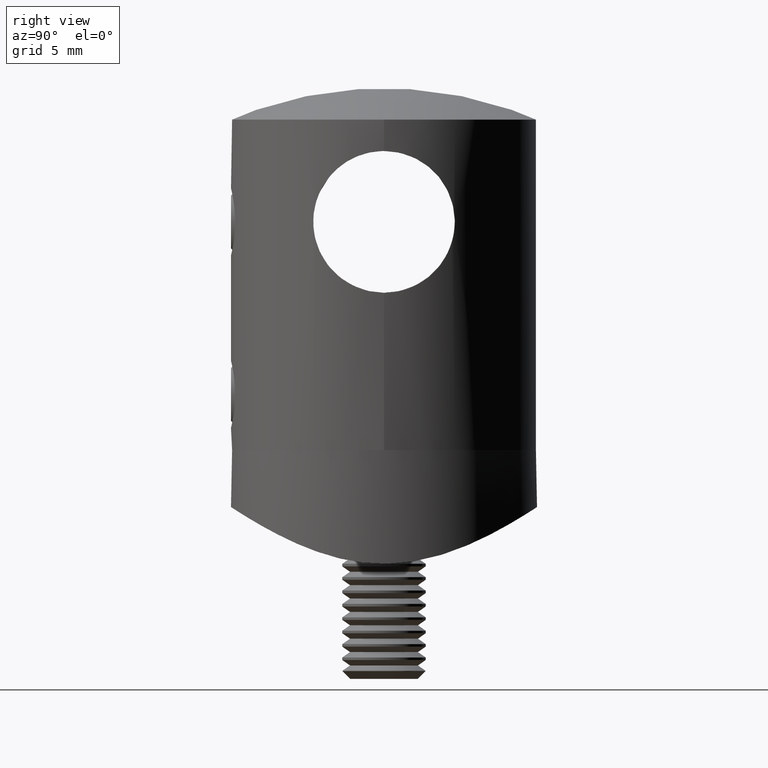
[diagram: clean part render]
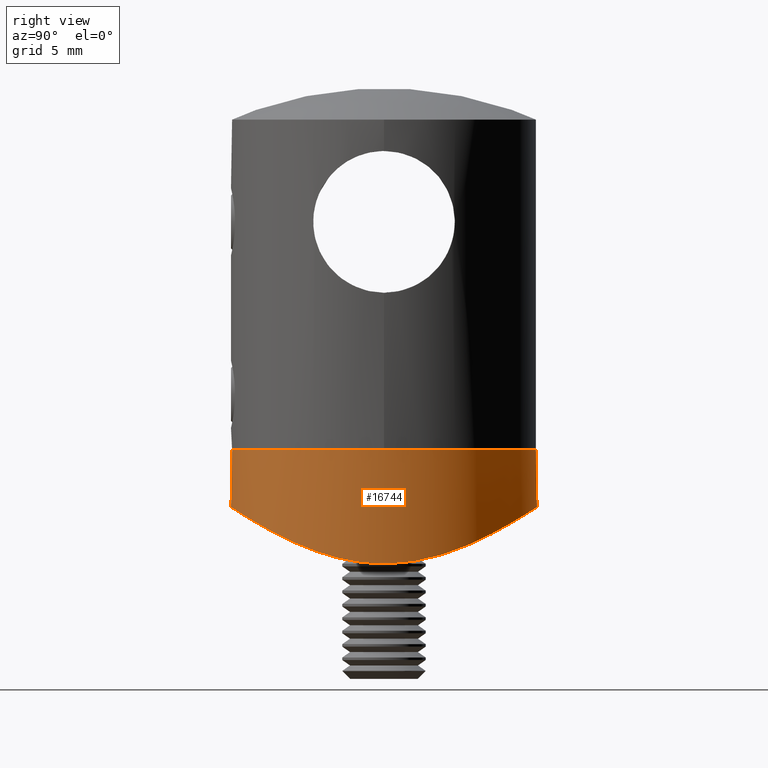
[diagram: same view with one face highlighted and labeled with its STEP entity id]
A machine part, right view. The second image highlights one B-rep face of the part: STEP entity #16744.
In plain terms, the highlighted cylindrical surface (bore or boss wall) has radius 11 mm, axis along (-0, -0, -1).
Its self-contained STEP definition (entity closure, byte-faithful):
#60 = CARTESIAN_POINT ( 'NONE',  ( -11.00201958474417000, 0.7160165617464400200, -8.187630609358146600 ) ) ;
#141 = CARTESIAN_POINT ( 'NONE',  ( 4.994393721956345000, -9.807314022847331000, -4.853819657771773600 ) ) ;
#914 = CARTESIAN_POINT ( 'NONE',  ( -5.421010862427522200E-016, 11.00000000000000000, -4.099999999999999600 ) ) ;
#1123 = CARTESIAN_POINT ( 'NONE',  ( 10.90120721894147200, 1.516899785101762700, -8.101312592176501700 ) ) ;
#1194 = CARTESIAN_POINT ( 'NONE',  ( 11.00201491404832400, -0.7148670346551255800, -8.187626584236538100 ) ) ;
#1264 = CARTESIAN_POINT ( 'NONE',  ( 9.854148997464204000, -4.901191698155273000, -7.280307266766505400 ) ) ;
#1357 = ORIENTED_EDGE ( 'NONE', *, *, #7437, .T. ) ;
#1640 = CARTESIAN_POINT ( 'NONE',  ( -0.7230737693545389300, -11.00189855515613700, -4.098760589519369700 ) ) ;
#1721 = CARTESIAN_POINT ( 'NONE',  ( -10.92889180310983300, 1.450768181064455300, -8.123545870956636600 ) ) ;
#1793 = CARTESIAN_POINT ( 'NONE',  ( 7.324541236306505000, -8.236759769819171200, -5.764989743605612600 ) ) ;
#1856 = CARTESIAN_POINT ( 'NONE',  ( -8.746824076971785500, 6.706926852566843100, -6.540603192880103800 ) ) ;
#1981 = AXIS2_PLACEMENT_3D ( 'NONE', #8792, #15748, #3800 ) ;
#2765 = CARTESIAN_POINT ( 'NONE',  ( 8.269092376313965400, 7.262551162746977000, -6.266302194668813100 ) ) ;
#2899 = CARTESIAN_POINT ( 'NONE',  ( 1.891625101859110800, -10.84241175405865600, -4.202550746245740300 ) ) ;
#2969 = CARTESIAN_POINT ( 'NONE',  ( -4.940812458176210100, -9.854400788619697600, -4.825997802038250100 ) ) ;
#3357 = CARTESIAN_POINT ( 'NONE',  ( -9.513323411660570300, 5.533801788003234600, -7.040950786251593200 ) ) ;
#3425 = CARTESIAN_POINT ( 'NONE',  ( 0.4040280168444430100, -10.99899601032173800, -4.100655422304378700 ) ) ;
#3498 = CARTESIAN_POINT ( 'NONE',  ( 1.521233653155181100, -10.90071426419850400, -4.164673317254778500 ) ) ;
#3765 = ORIENTED_EDGE ( 'NONE', *, *, #5634, .F. ) ;
#3800 = DIRECTION ( 'NONE',  ( -1.000000000000000000, 0.0000000000000000000, 0.0000000000000000000 ) ) ;
#4330 = CARTESIAN_POINT ( 'NONE',  ( 10.92911577364980900, -1.448483440927385000, -8.123745414125503200 ) ) ;
#4471 = CARTESIAN_POINT ( 'NONE',  ( 9.843250045500743900, 4.961322990543318500, -7.269578455515920200 ) ) ;
#4609 = CARTESIAN_POINT ( 'NONE',  ( -5.567662256621773900, -9.513652561121729100, -5.033765088256144400 ) ) ;
#4684 = CARTESIAN_POINT ( 'NONE',  ( 8.753413770078076100, -6.698215559651554700, -6.544643719260795600 ) ) ;
#5054 = AXIS2_PLACEMENT_3D ( 'NONE', #18546, #11877, #9862 ) ;
#5056 = CARTESIAN_POINT ( 'NONE',  ( -7.313931224412483400, 8.246267564684838900, -5.759829195327544200 ) ) ;
#5132 = CARTESIAN_POINT ( 'NONE',  ( -4.977280282428550300, 9.816035886505098100, -4.848502319184940600 ) ) ;
#5209 = CARTESIAN_POINT ( 'NONE',  ( -1.459233787555855600, -10.92752189499604600, -4.147593627837132100 ) ) ;
#5346 = CARTESIAN_POINT ( 'NONE',  ( -5.421010862427522200E-016, 11.00000000000000000, -4.099999999999999600 ) ) ;
#5370 = B_SPLINE_CURVE_WITH_KNOTS ( 'NONE', 3,
 ( #914, #9391, #16205, #14693, #21510, #19838, #11245, #12972, #18199, #9595, #2765, #5972, #14552, #21643, #4471, #7972, #19912, #17927, #21576, #11323, #1123, #11386, #18007, #1194, #4330, #11453, #22180, #13645, #8638, #18796, #1264, #20588, #6701, #4684, #21722, #1793, #6848, #13722, #6780, #141, #16952, #14841, #13193, #2899, #3498, #20446, #3425, #1640, #5209, #20368, #14908, #2969, #4609, #20513, #8041, #16560, #9751, #10191, #18650, #15436, #17172, #6322, #6918, #10118, #8421, #10340, #10271, #22110, #18277, #60, #1721, #19981, #11838, #18873, #12056, #13570, #18718, #3357, #15368, #1856, #15293, #5056, #17025, #8483, #11911, #5132, #17095, #8559, #11978, #17473, #12365, #17394, #10710, #5346 ),
 .UNSPECIFIED., .T., .F.,
 ( 4, 2, 2, 2, 2, 2, 2, 2, 2, 2, 2, 2, 2, 2, 2, 2, 2, 2, 2, 2, 2, 2, 2, 2, 2, 2, 2, 2, 2, 2, 2, 2, 2, 2, 2, 2, 2, 2, 2, 2, 2, 2, 2, 2, 2, 2, 4 ),
 ( 0.0000000000000000000, 0.002215515586463679600, 0.004431031172927359300, 0.006646546759391038500, 0.008862062345854718500, 0.009969820139086562500, 0.01107757793231840600, 0.01329309351878208900, 0.01440085131201393300, 0.01550860910524577300, 0.01661636689847761600, 0.01772412469170945800, 0.01993964027817313900, 0.02104739807140498100, 0.02215515586463682300, 0.02326291365786865900, 0.02437067145110050100, 0.02658618703756418200, 0.02880170262402786600, 0.02990946041725970500, 0.03101721821049154400, 0.03323273379695522400, 0.03434049159018706000, 0.03544824938341890200, 0.03766376496988257900, 0.03987928055634625700, 0.04209479614280994100, 0.04431031172927361900, 0.04541806952250546100, 0.04652582731573729600, 0.04874134290220098800, 0.04984910069543283000, 0.05095685848866466500, 0.05206461628189650700, 0.05317237407512834200, 0.05538788966159202700, 0.05649564745482386200, 0.05760340524805570400, 0.05871116304128754700, 0.05981892083451938900, 0.06203443642098307300, 0.06424995200744676400, 0.06535770980067860700, 0.06646546759391046300, 0.06868098318037414700, 0.06978874097360598900, 0.07089649876683783200 ),
 .UNSPECIFIED. ) ;
#5634 = EDGE_CURVE ( 'NONE', #10718, #10718, #5370, .T. ) ;
#5696 = EDGE_LOOP ( 'NONE', ( #1357 ) ) ;
#5972 = CARTESIAN_POINT ( 'NONE',  ( 8.714127519215512800, 6.722091913860005300, -6.525962716869017300 ) ) ;
#6322 = CARTESIAN_POINT ( 'NONE',  ( -10.25818145571561900, -3.986997462161848500, -7.581281686274249600 ) ) ;
#6701 = CARTESIAN_POINT ( 'NONE',  ( 9.336363142654940700, -5.827041217196950600, -6.921160638891731100 ) ) ;
#6780 = CARTESIAN_POINT ( 'NONE',  ( 5.619624300000450200, -9.462938218095864300, -5.061299203953278300 ) ) ;
#6848 = CARTESIAN_POINT ( 'NONE',  ( 6.789191799571511000, -8.683281219485916600, -5.515698990244468200 ) ) ;
#6918 = CARTESIAN_POINT ( 'NONE',  ( -10.38371390694916000, -3.648515827661915200, -7.678957479281230300 ) ) ;
#7437 = EDGE_CURVE ( 'NONE', #10179, #10179, #12726, .T. ) ;
#7972 = CARTESIAN_POINT ( 'NONE',  ( 10.26041540776501600, 3.981199565304947500, -7.583002321637183100 ) ) ;
#8041 = CARTESIAN_POINT ( 'NONE',  ( -7.287832315626904000, -8.268784713272825800, -5.747426715403324900 ) ) ;
#8421 = CARTESIAN_POINT ( 'NONE',  ( -10.69476580629262200, -2.599209880257915600, -7.928714355929983500 ) ) ;
#8483 = CARTESIAN_POINT ( 'NONE',  ( -5.905856559890865200, 9.286787051618294000, -5.165802236493235900 ) ) ;
#8559 = CARTESIAN_POINT ( 'NONE',  ( -3.647820308111114700, 10.40291650209018400, -4.485087939503843700 ) ) ;
#8638 = CARTESIAN_POINT ( 'NONE',  ( 10.28409182688678100, -3.919822377358858300, -7.601224180167291100 ) ) ;
#8792 = CARTESIAN_POINT ( 'NONE',  ( 0.0000000000000000000, 0.0000000000000000000, -2.100000000000000100 ) ) ;
#9391 = CARTESIAN_POINT ( 'NONE',  ( 0.7504225575288329100, 10.99999999999999600, -4.099999999999999600 ) ) ;
#9393 = CARTESIAN_POINT ( 'NONE',  ( 0.0000000000000000000, 11.00000000000000000, -4.099999999999999600 ) ) ;
#9595 = CARTESIAN_POINT ( 'NONE',  ( 8.035128173064736100, 7.520482768428734300, -6.136631074858657400 ) ) ;
#9751 = CARTESIAN_POINT ( 'NONE',  ( -8.261126776390940000, -7.271634869465105800, -6.261808302300234900 ) ) ;
#9862 = DIRECTION ( 'NONE',  ( -1.000000000000000000, 0.0000000000000000000, 0.0000000000000000000 ) ) ;
#10118 = CARTESIAN_POINT ( 'NONE',  ( -10.60270450494716400, -2.952260054067377100, -7.853254554322739400 ) ) ;
#10179 = VERTEX_POINT ( 'NONE', #14620 ) ;
#10191 = CARTESIAN_POINT ( 'NONE',  ( -8.707368420141696300, -6.730871005029237100, -6.521870316638445100 ) ) ;
#10271 = CARTESIAN_POINT ( 'NONE',  ( -10.90090342499425300, -1.519220722226561200, -8.101054233036480300 ) ) ;
#10340 = CARTESIAN_POINT ( 'NONE',  ( -10.84386393418551700, -1.882690263943270500, -8.052616139201704800 ) ) ;
#10710 = CARTESIAN_POINT ( 'NONE',  ( -0.3752112787644171800, 11.00000000000000200, -4.099999999999999600 ) ) ;
#10718 = VERTEX_POINT ( 'NONE', #9393 ) ;
#10964 = EDGE_LOOP ( 'NONE', ( #3765 ) ) ;
#11245 = CARTESIAN_POINT ( 'NONE',  ( 5.583335700524620500, 9.504358815653152000, -5.039322906466653200 ) ) ;
#11323 = CARTESIAN_POINT ( 'NONE',  ( 10.84434200566227700, 1.879824784190038400, -8.053020297059907400 ) ) ;
#11386 = CARTESIAN_POINT ( 'NONE',  ( 10.97857567691352700, 0.7798588940482332800, -8.167356961858532200 ) ) ;
#11453 = CARTESIAN_POINT ( 'NONE',  ( 10.71079635700079700, -2.532737721711200600, -7.941913631408527700 ) ) ;
#11838 = CARTESIAN_POINT ( 'NONE',  ( -10.61856669320482600, 2.894416533918324800, -7.866145591033403900 ) ) ;
#11877 = DIRECTION ( 'NONE',  ( -0.0000000000000000000, -0.0000000000000000000, -1.000000000000000000 ) ) ;
#11911 = CARTESIAN_POINT ( 'NONE',  ( -5.604322291244399100, 9.472035219047118200, -5.055877871646831800 ) ) ;
#11978 = CARTESIAN_POINT ( 'NONE',  ( -2.953023256731231300, 10.62197701239059300, -4.344706131990983000 ) ) ;
#12056 = CARTESIAN_POINT ( 'NONE',  ( -10.28190739673833900, 3.925598203230044700, -7.599535194388929300 ) ) ;
#12365 = CARTESIAN_POINT ( 'NONE',  ( -1.495634549109364300, 10.90427622395808900, -4.162358782812155800 ) ) ;
#12726 = CIRCLE ( 'NONE', #5054, 11.00000000000000000 ) ;
#12972 = CARTESIAN_POINT ( 'NONE',  ( 6.761475590729557600, 8.705683309046159800, -5.503132001748452000 ) ) ;
#13193 = CARTESIAN_POINT ( 'NONE',  ( 2.975070670190538700, -10.61571981494909300, -4.348715030468193600 ) ) ;
#13570 = CARTESIAN_POINT ( 'NONE',  ( -10.00515826687519700, 4.585275239621323000, -7.390894635126502800 ) ) ;
#13645 = CARTESIAN_POINT ( 'NONE',  ( 10.40660793608673800, -3.582419515371406200, -7.696939661726952800 ) ) ;
#13722 = CARTESIAN_POINT ( 'NONE',  ( 5.920309234495463500, -9.277556956168968600, -5.171232405357976300 ) ) ;
#14552 = CARTESIAN_POINT ( 'NONE',  ( 8.923976763951415600, 6.440819694390915700, -6.655284595638328900 ) ) ;
#14620 = CARTESIAN_POINT ( 'NONE',  ( -11.00000000000000000, 0.0000000000000000000, 0.0000000000000000000 ) ) ;
#14693 = CARTESIAN_POINT ( 'NONE',  ( 2.922207133913592000, 10.63010287850188700, -4.339491982653713700 ) ) ;
#14841 = CARTESIAN_POINT ( 'NONE',  ( 3.668218985695954600, -10.39566322427721600, -4.489679260312636100 ) ) ;
#14908 = CARTESIAN_POINT ( 'NONE',  ( -3.610935265409396200, -10.41546874406719200, -4.477106473489020500 ) ) ;
#15293 = CARTESIAN_POINT ( 'NONE',  ( -8.304453093722246500, 7.247798115150285300, -6.277885706390971900 ) ) ;
#15368 = CARTESIAN_POINT ( 'NONE',  ( -9.331423384684521600, 5.834979642257271100, -6.917864575895957400 ) ) ;
#15436 = CARTESIAN_POINT ( 'NONE',  ( -9.504457166913262300, -5.581481274748702100, -7.028651301162893700 ) ) ;
#15748 = DIRECTION ( 'NONE',  ( -0.0000000000000000000, -0.0000000000000000000, -1.000000000000000000 ) ) ;
#16084 = FACE_OUTER_BOUND ( 'NONE', #10964, .T. ) ;
#16205 = CARTESIAN_POINT ( 'NONE',  ( 1.484457244692798400, 10.92404542418735500, -4.149861375080862800 ) ) ;
#16560 = CARTESIAN_POINT ( 'NONE',  ( -8.026524102714901700, -7.529690295910200800, -6.131954602171922500 ) ) ;
#16744 = ADVANCED_FACE ( 'NONE', ( #16084, #17420 ), #21693, .T. ) ;
#16952 = CARTESIAN_POINT ( 'NONE',  ( 4.667745864453625200, -9.967123940474456500, -4.755756550861145000 ) ) ;
#17025 = CARTESIAN_POINT ( 'NONE',  ( -6.777151808125120500, 8.692780634645684400, -5.510347272570602900 ) ) ;
#17095 = CARTESIAN_POINT ( 'NONE',  ( -4.649684354675678800, 9.975582769408347900, -4.750546585087526800 ) ) ;
#17172 = CARTESIAN_POINT ( 'NONE',  ( -9.839819540571294700, -4.968268669836859000, -7.267086716290001500 ) ) ;
#17394 = CARTESIAN_POINT ( 'NONE',  ( -0.7507821401581715700, 10.98073261904172200, -4.112596799995159800 ) ) ;
#17420 = FACE_OUTER_BOUND ( 'NONE', #5696, .T. ) ;
#17473 = CARTESIAN_POINT ( 'NONE',  ( -1.866901934787220000, 10.84672128652364400, -4.199758662475307600 ) ) ;
#17927 = CARTESIAN_POINT ( 'NONE',  ( 10.60391943083395300, 2.947821833262430000, -7.854242667856583500 ) ) ;
#18007 = CARTESIAN_POINT ( 'NONE',  ( 10.99892969909351400, 0.4029729965433923600, -8.184967790190246000 ) ) ;
#18199 = CARTESIAN_POINT ( 'NONE',  ( 7.298473991795845000, 8.259301465761376800, -5.752582059087585800 ) ) ;
#18277 = CARTESIAN_POINT ( 'NONE',  ( -10.99892727231373100, -0.4035808757864801100, -8.184965698834776800 ) ) ;
#18546 = CARTESIAN_POINT ( 'NONE',  ( 0.0000000000000000000, 0.0000000000000000000, 0.0000000000000000000 ) ) ;
#18650 = CARTESIAN_POINT ( 'NONE',  ( -8.917872823006519000, -6.449298731427829200, -6.651465696766070600 ) ) ;
#18718 = CARTESIAN_POINT ( 'NONE',  ( -9.850663112943012200, 4.908229904870082400, -7.277786989641064100 ) ) ;
#18796 = CARTESIAN_POINT ( 'NONE',  ( 10.00816566813236000, -4.578664885433245700, -7.393120545228461200 ) ) ;
#18873 = CARTESIAN_POINT ( 'NONE',  ( -10.40478755954617400, 3.587757172743404800, -7.695506397685850400 ) ) ;
#19838 = CARTESIAN_POINT ( 'NONE',  ( 4.957832025022766800, 9.845749512261178900, -4.831292108248831600 ) ) ;
#19912 = CARTESIAN_POINT ( 'NONE',  ( 10.38560268325633000, 3.643078061449605400, -7.680439935568902100 ) ) ;
#19981 = CARTESIAN_POINT ( 'NONE',  ( -10.70988451701696900, 2.536675919777241300, -7.941160734935115400 ) ) ;
#20368 = CARTESIAN_POINT ( 'NONE',  ( -2.899918832615932600, -10.63628547833321400, -4.335527576649221600 ) ) ;
#20446 = CARTESIAN_POINT ( 'NONE',  ( 0.7777350981201828200, -10.97883652370981800, -4.113834409488529100 ) ) ;
#20513 = CARTESIAN_POINT ( 'NONE',  ( -6.749316910489418400, -8.715226290770093700, -5.497747154171783300 ) ) ;
#20588 = CARTESIAN_POINT ( 'NONE',  ( 9.517753844899608900, -5.526146421711025900, -7.043990017508975600 ) ) ;
#21510 = CARTESIAN_POINT ( 'NONE',  ( 3.631501573464931200, 10.40822166215027900, -4.481695934011163700 ) ) ;
#21576 = CARTESIAN_POINT ( 'NONE',  ( 10.69569944305366800, 2.595285760545030600, -7.929483404346758100 ) ) ;
#21643 = CARTESIAN_POINT ( 'NONE',  ( 9.508842883804703700, 5.573866296199705400, -7.031688101207270100 ) ) ;
#21693 = CYLINDRICAL_SURFACE ( 'NONE', #1981, 11.00000000000000000 ) ;
#21722 = CARTESIAN_POINT ( 'NONE',  ( 8.312457816443618700, -7.238519246220975300, -6.282468310618768600 ) ) ;
#22110 = CARTESIAN_POINT ( 'NONE',  ( -10.97850977820062600, -0.7810570618380818800, -8.167299743271211600 ) ) ;
#22180 = CARTESIAN_POINT ( 'NONE',  ( 10.61975103781053800, -2.890001075165774300, -7.867110985709172300 ) ) ;